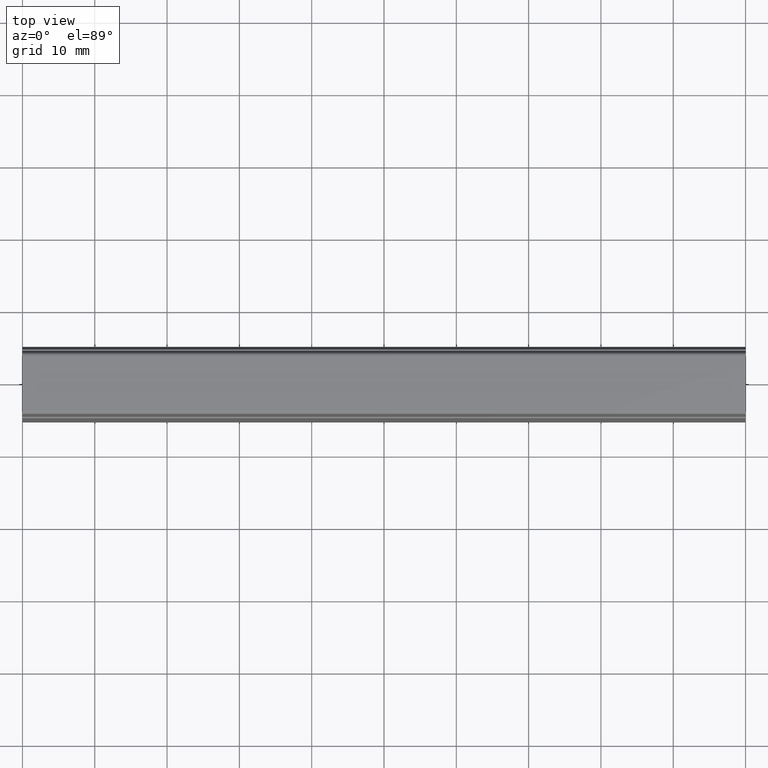
[diagram: clean part render]
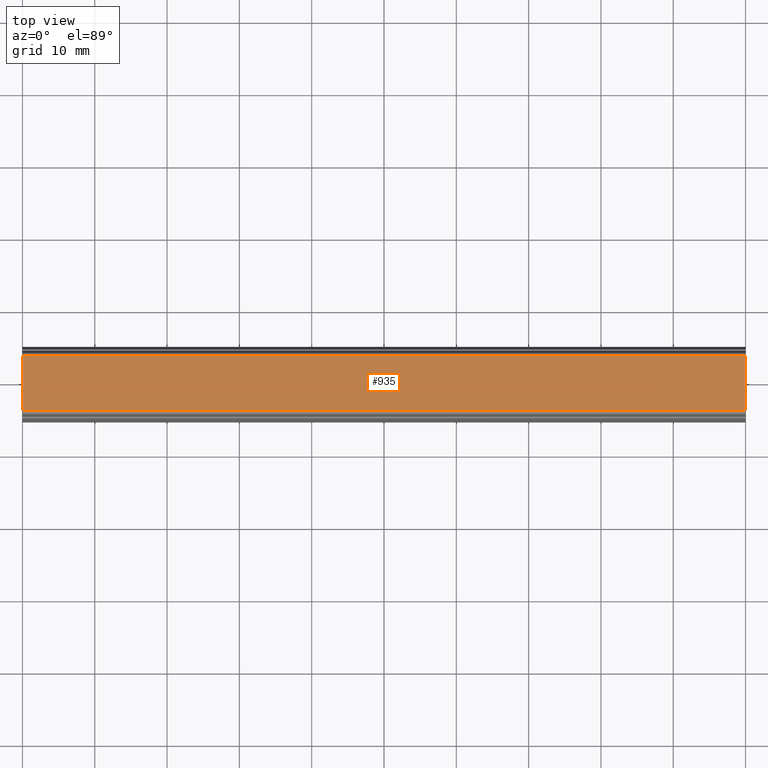
[diagram: same view with one face highlighted and labeled with its STEP entity id]
A machine part, top view. The second image highlights one B-rep face of the part: STEP entity #935.
In plain terms, the highlighted planar face has unit normal (0, 0, 1).
Its self-contained STEP definition (entity closure, byte-faithful):
#185=CARTESIAN_POINT('',(100.0,3.779367162833410,0.500000000000000));
#186=VERTEX_POINT('',#185);
#194=CARTESIAN_POINT('',(100.0,-3.779367162833395,0.500000000000002));
#195=VERTEX_POINT('',#194);
#196=CARTESIAN_POINT('',(100.0,-3.779367162833395,0.500000000000002));
#197=DIRECTION('',(0.0,1.0,0.0));
#198=VECTOR('',#197,7.558734325666800);
#199=LINE('',#196,#198);
#200=EDGE_CURVE('',#195,#186,#199,.T.);
#547=CARTESIAN_POINT('',(0.0,-3.779367162833395,0.500000000000002));
#548=VERTEX_POINT('',#547);
#549=CARTESIAN_POINT('',(0.0,3.779367162833410,0.500000000000000));
#550=VERTEX_POINT('',#549);
#551=CARTESIAN_POINT('',(0.0,-3.779367162833395,0.500000000000002));
#552=DIRECTION('',(0.0,1.0,0.0));
#553=VECTOR('',#552,7.558734325666800);
#554=LINE('',#551,#553);
#555=EDGE_CURVE('',#548,#550,#554,.T.);
#914=CARTESIAN_POINT('',(105.0,4.157303879116746,0.500000000000000));
#915=DIRECTION('',(0.0,0.0,1.0));
#916=DIRECTION('',(-1.0,0.0,0.0));
#917=AXIS2_PLACEMENT_3D('',#914,#915,#916);
#918=PLANE('',#917);
#919=ORIENTED_EDGE('',*,*,#200,.T.);
#920=CARTESIAN_POINT('',(100.0,3.779367162833410,0.500000000000000));
#921=DIRECTION('',(-1.0,0.0,0.0));
#922=VECTOR('',#921,100.0);
#923=LINE('',#920,#922);
#924=EDGE_CURVE('',#186,#550,#923,.T.);
#925=ORIENTED_EDGE('',*,*,#924,.T.);
#926=ORIENTED_EDGE('',*,*,#555,.F.);
#927=CARTESIAN_POINT('',(0.0,-3.779367162833395,0.500000000000002));
#928=DIRECTION('',(1.0,0.0,0.0));
#929=VECTOR('',#928,100.0);
#930=LINE('',#927,#929);
#931=EDGE_CURVE('',#548,#195,#930,.T.);
#932=ORIENTED_EDGE('',*,*,#931,.T.);
#933=EDGE_LOOP('',(#919,#925,#926,#932));
#934=FACE_OUTER_BOUND('',#933,.T.);
#935=ADVANCED_FACE('',(#934),#918,.T.);